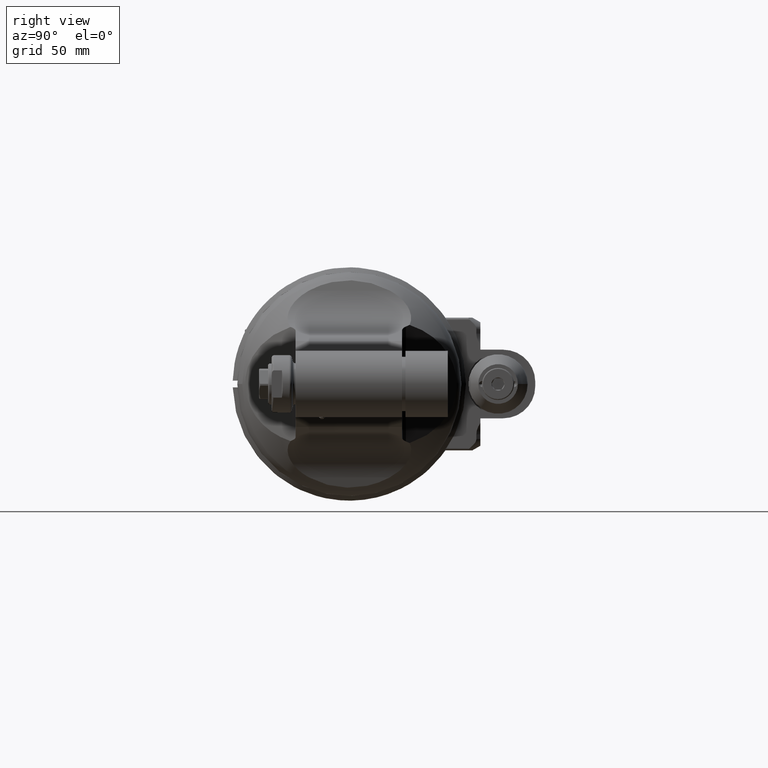
[diagram: clean part render]
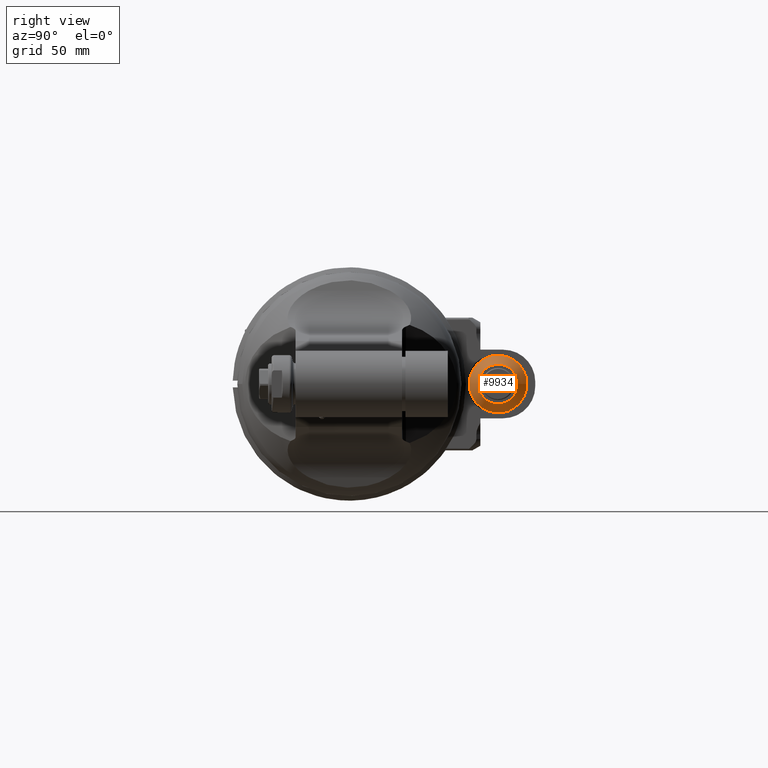
[diagram: same view with one face highlighted and labeled with its STEP entity id]
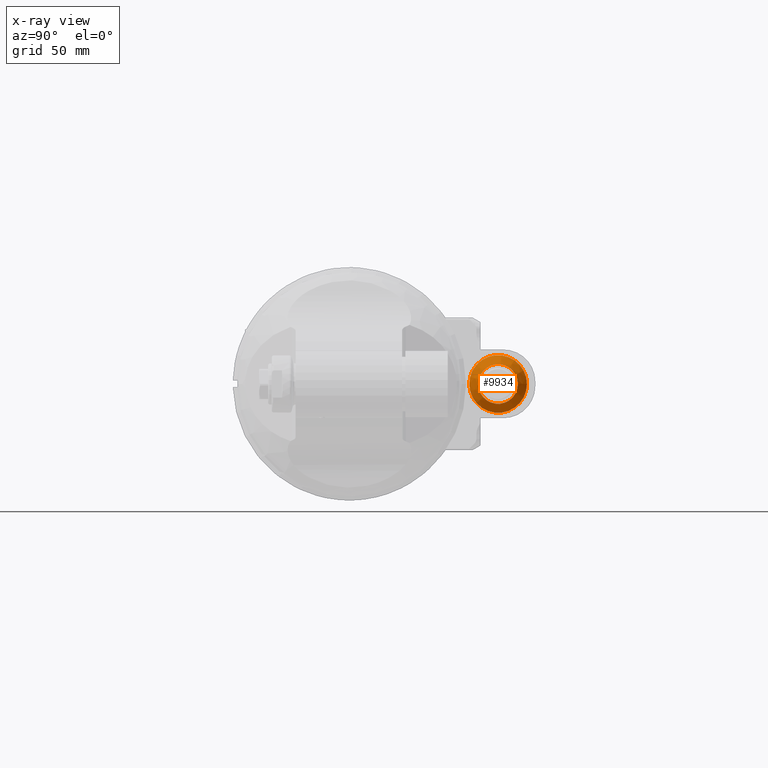
[diagram: x-ray of the same camera — body ghosted, the highlighted face saturated]
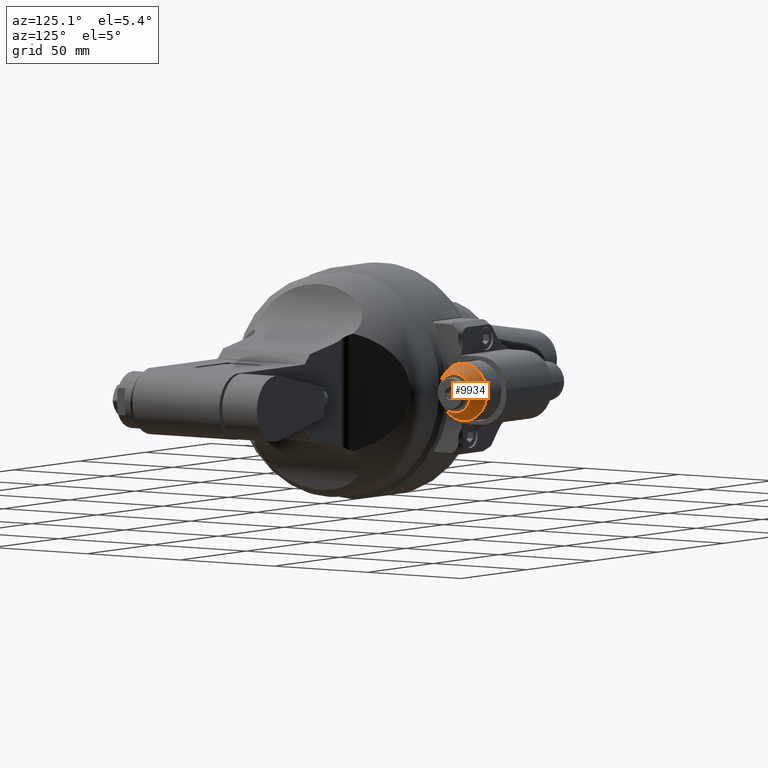
[diagram: same view with one face highlighted and labeled with its STEP entity id]
A machine part, right view. The second image highlights one B-rep face of the part: STEP entity #9934.
The next image is the same camera in x-ray: the body ghosted, the highlighted face saturated — about 0% of this face is hidden behind the body in this view.
A second angle (auxiliary view) of the same face is appended — the face is thin or edge-on in the first view.
In plain terms, the highlighted conical surface has half-angle 30 deg.
Its self-contained STEP definition (entity closure, byte-faithful):
#236=CONICAL_SURFACE('',#10838,10.63397459622,0.523598775598299);
#949=CIRCLE('',#10837,12.59807621135);
#950=CIRCLE('',#10839,8.669872981078);
#1455=FACE_OUTER_BOUND('',#2063,.T.);
#2063=EDGE_LOOP('',(#8597,#8598,#8599,#8600));
#2900=LINE('',#16938,#3710);
#3710=VECTOR('',#13176,10.63397459622);
#4673=VERTEX_POINT('',#16933);
#4674=VERTEX_POINT('',#16937);
#6016=EDGE_CURVE('',#4673,#4673,#949,.T.);
#6017=EDGE_CURVE('',#4673,#4674,#2900,.T.);
#6018=EDGE_CURVE('',#4674,#4674,#950,.T.);
#8597=ORIENTED_EDGE('',*,*,#6016,.F.);
#8598=ORIENTED_EDGE('',*,*,#6017,.T.);
#8599=ORIENTED_EDGE('',*,*,#6018,.F.);
#8600=ORIENTED_EDGE('',*,*,#6017,.F.);
#9934=ADVANCED_FACE('',(#1455),#236,.T.);
#10837=AXIS2_PLACEMENT_3D('',#16935,#13172,#13173);
#10838=AXIS2_PLACEMENT_3D('',#16936,#13174,#13175);
#10839=AXIS2_PLACEMENT_3D('',#16939,#13177,#13178);
#13172=DIRECTION('center_axis',(-1.,0.,0.));
#13173=DIRECTION('ref_axis',(0.,1.,0.));
#13174=DIRECTION('center_axis',(-1.,0.,0.));
#13175=DIRECTION('ref_axis',(0.,-1.,0.));
#13176=DIRECTION('',(0.866025403784439,-0.5,6.12323399573676E-17));
#13177=DIRECTION('center_axis',(1.,0.,0.));
#13178=DIRECTION('ref_axis',(0.,-1.,0.));
#16933=CARTESIAN_POINT('',(-7.303847577293,77.59807621135,0.));
#16935=CARTESIAN_POINT('Origin',(-7.303847577293,65.,0.));
#16936=CARTESIAN_POINT('Origin',(-3.901923788647,65.,0.));
#16937=CARTESIAN_POINT('',(-0.5,73.66987298108,0.));
#16938=CARTESIAN_POINT('',(-3.901923788647,75.63397459622,-1.30228629514751E-15));
#16939=CARTESIAN_POINT('Origin',(-0.5,65.,0.));